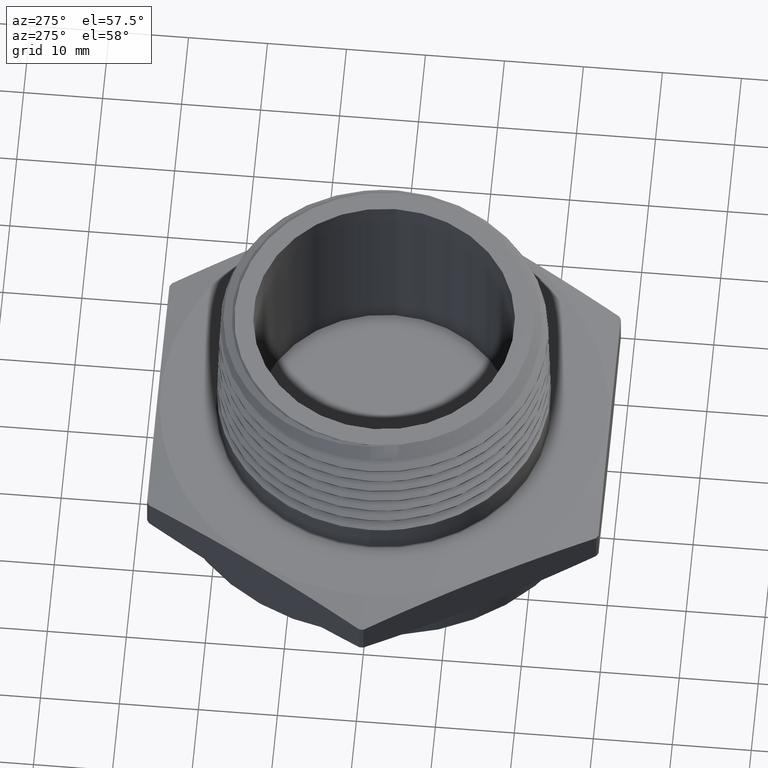
[diagram: clean part render]
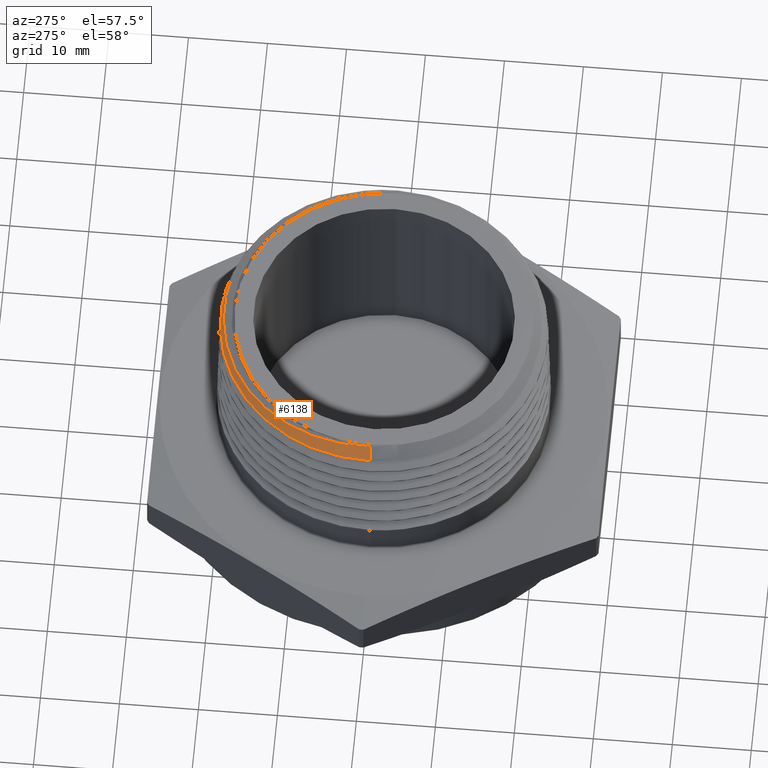
[diagram: same view with one face highlighted and labeled with its STEP entity id]
A machine part, auxiliary view. The second image highlights one B-rep face of the part: STEP entity #6138.
In plain terms, the highlighted conical surface has half-angle 45 deg.
Its self-contained STEP definition (entity closure, byte-faithful):
#26 = EDGE_LOOP ( 'NONE', ( #6062, #4178, #4279, #4277 ) ) ;
#99 = CIRCLE ( 'NONE', #4580, 0.8146699455794440500 ) ;
#163 = LINE ( 'NONE', #4854, #166 ) ;
#166 = VECTOR ( 'NONE', #4855, 39.37007874015748100 ) ;
#301 = CARTESIAN_POINT ( 'NONE',  ( 0.05590739452915700200, 0.8127493361839033300, 0.9790800544205557900 ) ) ;
#336 = CARTESIAN_POINT ( 'NONE',  ( -0.7500252292204397900, -1.306323699306776900E-013, 1.043724770779559200 ) ) ;
#337 = CARTESIAN_POINT ( 'NONE',  ( -0.8000725450993546600, -2.945273618169283600E-016, 0.9936774549006445200 ) ) ;
#944 = DIRECTION ( 'NONE',  ( -0.0000000000000000000, -0.0000000000000000000, -1.000000000000000000 ) ) ;
#946 = DIRECTION ( 'NONE',  ( -1.000000000000000000, 0.0000000000000000000, 0.0000000000000000000 ) ) ;
#948 = CARTESIAN_POINT ( 'NONE',  ( 0.0000000000000000000, 0.0000000000000000000, 0.9684672068725388400 ) ) ;
#1057 = FACE_OUTER_BOUND ( 'NONE', #26, .T. ) ;
#1072 = CONICAL_SURFACE ( 'NONE', #2783, 0.8252827931274610000, 0.7853981633974541600 ) ;
#2783 = AXIS2_PLACEMENT_3D ( 'NONE', #948, #944, #946 ) ;
#3842 = CARTESIAN_POINT ( 'NONE',  ( 0.0000000000000000000, 0.0000000000000000000, 0.9790800544205556800 ) ) ;
#3843 = DIRECTION ( 'NONE',  ( -0.0000000000000000000, -0.0000000000000000000, -1.000000000000000000 ) ) ;
#3844 = DIRECTION ( 'NONE',  ( -1.000000000000000000, 0.0000000000000000000, 0.0000000000000000000 ) ) ;
#4178 = ORIENTED_EDGE ( 'NONE', *, *, #4473, .T. ) ;
#4218 = VERTEX_POINT ( 'NONE', #7659 ) ;
#4228 = VERTEX_POINT ( 'NONE', #301 ) ;
#4263 = VERTEX_POINT ( 'NONE', #336 ) ;
#4264 = VERTEX_POINT ( 'NONE', #337 ) ;
#4277 = ORIENTED_EDGE ( 'NONE', *, *, #4472, .T. ) ;
#4279 = ORIENTED_EDGE ( 'NONE', *, *, #4494, .F. ) ;
#4472 = EDGE_CURVE ( 'NONE', #4228, #4264, #5969, .T. ) ;
#4473 = EDGE_CURVE ( 'NONE', #4263, #4218, #5970, .T. ) ;
#4494 = EDGE_CURVE ( 'NONE', #4228, #4218, #99, .T. ) ;
#4549 = EDGE_CURVE ( 'NONE', #4263, #4264, #163, .T. ) ;
#4580 = AXIS2_PLACEMENT_3D ( 'NONE', #3842, #3843, #3844 ) ;
#4854 = CARTESIAN_POINT ( 'NONE',  ( -0.8252827931274610000, 0.0000000000000000000, 0.9684672068725388400 ) ) ;
#4855 = DIRECTION ( 'NONE',  ( -0.7071067811865516800, 0.0000000000000000000, -0.7071067811865433500 ) ) ;
#5969 = B_SPLINE_CURVE_WITH_KNOTS ( 'NONE', 3,
 ( #6354, #6361, #6366, #6367, #6368, #6369, #6370, #6371, #6372, #6373, #6374, #6375, #6376, #6377, #6378, #6379, #6380, #6381, #6382, #6383, #6384, #6385, #6386, #6387, #6388, #6389, #6390, #6391 ),
 .UNSPECIFIED., .F., .F.,
 ( 4, 2, 2, 2, 2, 2, 2, 2, 2, 2, 2, 2, 2, 4 ),
 ( 0.0000000000000000000, 0.004217357007584378100, 0.008434714015168752800, 0.01054339251896094100, 0.01159773177085703600, 0.01265207102275312800, 0.01686942803033750200, 0.01897810653412969300, 0.02108678503792187800, 0.02319546354171406500, 0.02530414204550624600, 0.02952149905309060800, 0.03163017755688279200, 0.03373885606067497000 ),
 .UNSPECIFIED. ) ;
#5970 = B_SPLINE_CURVE_WITH_KNOTS ( 'NONE', 3,
 ( #6362, #6330, #6394, #6395, #6396, #6397, #6398, #6399, #6400, #6401, #6402, #6403, #6404, #6405, #6406, #6407, #6408, #6409, #6410, #6411, #6412, #6413, #6414, #6415, #6416, #6417, #6418, #6419, #6420, #6421, #6422, #6423, #6424, #6425, #6426, #6427 ),
 .UNSPECIFIED., .F., .F.,
 ( 4, 2, 2, 2, 2, 2, 2, 2, 2, 2, 2, 2, 2, 2, 2, 2, 2, 4 ),
 ( 0.003072509283239645500, 0.005573580475924808100, 0.008074651668609968100, 0.01057572286129512800, 0.01307679405398029500, 0.01557786524666545900, 0.01682840084300803900, 0.01807893643935062200, 0.02308107882472094200, 0.02433161442106352200, 0.02558215001740610200, 0.02808322121009126200, 0.03058429240277641900, 0.03308536359546157500, 0.03558643478814673500, 0.03683697038448931900, 0.03808750598083190200, 0.04308964836620221600 ),
 .UNSPECIFIED. ) ;
#6062 = ORIENTED_EDGE ( 'NONE', *, *, #4549, .F. ) ;
#6138 = ADVANCED_FACE ( 'NONE', ( #1057 ), #1072, .T. ) ;
#6330 = CARTESIAN_POINT ( 'NONE',  ( -0.7514364348563948900, 0.03280875392348253000, 1.042313565143610000 ) ) ;
#6354 = CARTESIAN_POINT ( 'NONE',  ( 0.05590739452915700200, 0.8127493361839033300, 0.9790800544205557900 ) ) ;
#6361 = CARTESIAN_POINT ( 'NONE',  ( 0.0003822257375215578600, 0.8159603825915020500, 0.9796870384935335600 ) ) ;
#6362 = CARTESIAN_POINT ( 'NONE',  ( -0.7500252292204397900, -1.306323699306776900E-013, 1.043724770779559200 ) ) ;
#6366 = CARTESIAN_POINT ( 'NONE',  ( -0.05498116553721908000, 0.8134977100854340300, 0.9802920251006582700 ) ) ;
#6367 = CARTESIAN_POINT ( 'NONE',  ( -0.1649272569544739400, 0.7972607859240175000, 0.9815073115700141400 ) ) ;
#6368 = CARTESIAN_POINT ( 'NONE',  ( -0.2181553019147744200, 0.7836967351222724500, 0.9821086057646668500 ) ) ;
#6369 = CARTESIAN_POINT ( 'NONE',  ( -0.2954743366682828200, 0.7554774109732928000, 0.9830104837367108500 ) ) ;
#6370 = CARTESIAN_POINT ( 'NONE',  ( -0.3208231469754382300, 0.7447472726691568600, 0.9833123193137062200 ) ) ;
#6371 = CARTESIAN_POINT ( 'NONE',  ( -0.3581911840549490400, 0.7266077182204866400, 0.9837697464533656800 ) ) ;
#6372 = CARTESIAN_POINT ( 'NONE',  ( -0.3705667807975460100, 0.7202025319975600100, 0.9839231178207680200 ) ) ;
#6373 = CARTESIAN_POINT ( 'NONE',  ( -0.3948348412860620500, 0.7068405658508819500, 0.9842277394045495500 ) ) ;
#6374 = CARTESIAN_POINT ( 'NONE',  ( -0.4067522574446206200, 0.6998736019427727100, 0.9843792871868085600 ) ) ;
#6375 = CARTESIAN_POINT ( 'NONE',  ( -0.4652748672659356400, 0.6636334681920479400, 0.9851351520981411800 ) ) ;
#6376 = CARTESIAN_POINT ( 'NONE',  ( -0.5087168957607036700, 0.6301843679536522900, 0.9857382211666146900 ) ) ;
#6377 = CARTESIAN_POINT ( 'NONE',  ( -0.5687854551670535900, 0.5732852564311949900, 0.9866488083747130300 ) ) ;
#6378 = CARTESIAN_POINT ( 'NONE',  ( -0.5880443410477014200, 0.5530660650594743100, 0.9869570876102770100 ) ) ;
#6379 = CARTESIAN_POINT ( 'NONE',  ( -0.6240443819350095500, 0.5111371493809259100, 0.9875681593302893000 ) ) ;
#6380 = CARTESIAN_POINT ( 'NONE',  ( -0.6408541423436131500, 0.4893862832688085600, 0.9878708996480937100 ) ) ;
#6381 = CARTESIAN_POINT ( 'NONE',  ( -0.6721428447988714300, 0.4443446395139083500, 0.9884759343227078600 ) ) ;
#6382 = CARTESIAN_POINT ( 'NONE',  ( -0.6866204701002499600, 0.4210530116392690000, 0.9887797085748422100 ) ) ;
#6383 = CARTESIAN_POINT ( 'NONE',  ( -0.7132228679675183300, 0.3729153165485412100, 0.9893890398495041000 ) ) ;
#6384 = CARTESIAN_POINT ( 'NONE',  ( -0.7253850807383190900, 0.3479817928139756200, 0.9896950178322071500 ) ) ;
#6385 = CARTESIAN_POINT ( 'NONE',  ( -0.7579460572087699500, 0.2713365484212695300, 0.9906161185133468500 ) ) ;
#6386 = CARTESIAN_POINT ( 'NONE',  ( -0.7740873773467454900, 0.2187803935220445400, 0.9912240134591831000 ) ) ;
#6387 = CARTESIAN_POINT ( 'NONE',  ( -0.7901546050542306300, 0.1378108712265538000, 0.9921396870700507400 ) ) ;
#6388 = CARTESIAN_POINT ( 'NONE',  ( -0.7941444470800658200, 0.1104143311620601200, 0.9924481287959896500 ) ) ;
#6389 = CARTESIAN_POINT ( 'NONE',  ( -0.7992705265458894800, 0.05507664614157498800, 0.9930660592367759300 ) ) ;
#6390 = CARTESIAN_POINT ( 'NONE',  ( -0.8003785532827262200, 0.02749562575169247800, 0.9933714467172737300 ) ) ;
#6391 = CARTESIAN_POINT ( 'NONE',  ( -0.8000725450993546600, -2.945273618169283600E-016, 0.9936774549006445200 ) ) ;
#6394 = CARTESIAN_POINT ( 'NONE',  ( -0.7506761221030494600, 0.06591039529651300500, 1.040892532082198000 ) ) ;
#6395 = CARTESIAN_POINT ( 'NONE',  ( -0.7449228993975856000, 0.1309679138996525100, 1.038105727201005000 ) ) ;
#6396 = CARTESIAN_POINT ( 'NONE',  ( -0.7399597935217191400, 0.1631162304881085800, 1.036722561933940200 ) ) ;
#6397 = CARTESIAN_POINT ( 'NONE',  ( -0.7259289262074826200, 0.2266634002698999500, 1.033952497875803700 ) ) ;
#6398 = CARTESIAN_POINT ( 'NONE',  ( -0.7168522771483161200, 0.2580610325353321900, 1.032574836481218400 ) ) ;
#6399 = CARTESIAN_POINT ( 'NONE',  ( -0.6944567877345866300, 0.3200805533608012700, 1.029788786022279000 ) ) ;
#6400 = CARTESIAN_POINT ( 'NONE',  ( -0.6813661797325345500, 0.3500688601822691300, 1.028406687094236800 ) ) ;
#6401 = CARTESIAN_POINT ( 'NONE',  ( -0.6515882689974661400, 0.4079611058545262200, 1.025673281799201400 ) ) ;
#6402 = CARTESIAN_POINT ( 'NONE',  ( -0.6348996847766226200, 0.4358885387954430900, 1.024313566081411800 ) ) ;
#6403 = CARTESIAN_POINT ( 'NONE',  ( -0.6071633458218564900, 0.4762482874260500800, 1.022261983728518300 ) ) ;
#6404 = CARTESIAN_POINT ( 'NONE',  ( -0.5974644361580768700, 0.4894447529881411100, 1.021577850412735100 ) ) ;
#6405 = CARTESIAN_POINT ( 'NONE',  ( -0.5771403219209828600, 0.5153130614956921200, 1.020207232965090000 ) ) ;
#6406 = CARTESIAN_POINT ( 'NONE',  ( -0.5665355862329734000, 0.5279522497029794900, 1.019522336814195700 ) ) ;
#6407 = CARTESIAN_POINT ( 'NONE',  ( -0.5119525011951384700, 0.5889777180993915900, 1.016120697558582400 ) ) ;
#6408 = CARTESIAN_POINT ( 'NONE',  ( -0.4628360794540839500, 0.6316230588339206700, 1.013451398329416000 ) ) ;
#6409 = CARTESIAN_POINT ( 'NONE',  ( -0.3946668343143057700, 0.6772478007755833300, 1.010067790687665800 ) ) ;
#6410 = CARTESIAN_POINT ( 'NONE',  ( -0.3806466182875170600, 0.6860042240503931900, 1.009387353592761300 ) ) ;
#6411 = CARTESIAN_POINT ( 'NONE',  ( -0.3522727548204673800, 0.7025047878489671900, 1.008040009997463800 ) ) ;
#6412 = CARTESIAN_POINT ( 'NONE',  ( -0.3378876987306346800, 0.7102735392127106400, 1.007371438901322600 ) ) ;
#6413 = CARTESIAN_POINT ( 'NONE',  ( -0.2941534175909266100, 0.7321713693805336200, 1.005372093912726900 ) ) ;
#6414 = CARTESIAN_POINT ( 'NONE',  ( -0.2642300219906057500, 0.7449033299194948200, 1.004041013288028400 ) ) ;
#6415 = CARTESIAN_POINT ( 'NONE',  ( -0.2028539524398910400, 0.7666470470906512300, 1.001386933545837900 ) ) ;
#6416 = CARTESIAN_POINT ( 'NONE',  ( -0.1713288095590431700, 0.7756731071228136800, 1.000062603684705800 ) ) ;
#6417 = CARTESIAN_POINT ( 'NONE',  ( -0.1070058451641533700, 0.7898257579078494800, 0.9973880648691980700 ) ) ;
#6418 = CARTESIAN_POINT ( 'NONE',  ( -0.07472610461773109000, 0.7948402432928151100, 0.9960669764498369900 ) ) ;
#6419 = CARTESIAN_POINT ( 'NONE',  ( -0.009939416548406042300, 0.8009014364473979700, 0.9934468662463981100 ) ) ;
#6420 = CARTESIAN_POINT ( 'NONE',  ( 0.02256668886448477000, 0.8019565391017239300, 0.9921388845479897100 ) ) ;
#6421 = CARTESIAN_POINT ( 'NONE',  ( 0.07149562436769388300, 0.8005583028784966100, 0.9901708631367416300 ) ) ;
#6422 = CARTESIAN_POINT ( 'NONE',  ( 0.08783375107054654200, 0.7995929425625224500, 0.9895149483176796100 ) ) ;
#6423 = CARTESIAN_POINT ( 'NONE',  ( 0.1205679484613883100, 0.7966446188723239600, 0.9882007118084164000 ) ) ;
#6424 = CARTESIAN_POINT ( 'NONE',  ( 0.1369578616805201800, 0.7946580508458659400, 0.9875426151566119000 ) ) ;
#6425 = CARTESIAN_POINT ( 'NONE',  ( 0.2180233896296134000, 0.7823187839640984900, 0.9842684018269064500 ) ) ;
#6426 = CARTESIAN_POINT ( 'NONE',  ( 0.2809038887012196800, 0.7647662564041404200, 0.9816943008458067800 ) ) ;
#6427 = CARTESIAN_POINT ( 'NONE',  ( 0.3418004454692851700, 0.7394995440887116600, 0.9790800544205556800 ) ) ;
#7659 = CARTESIAN_POINT ( 'NONE',  ( 0.3418004454692851700, 0.7394995440887116600, 0.9790800544205556800 ) ) ;